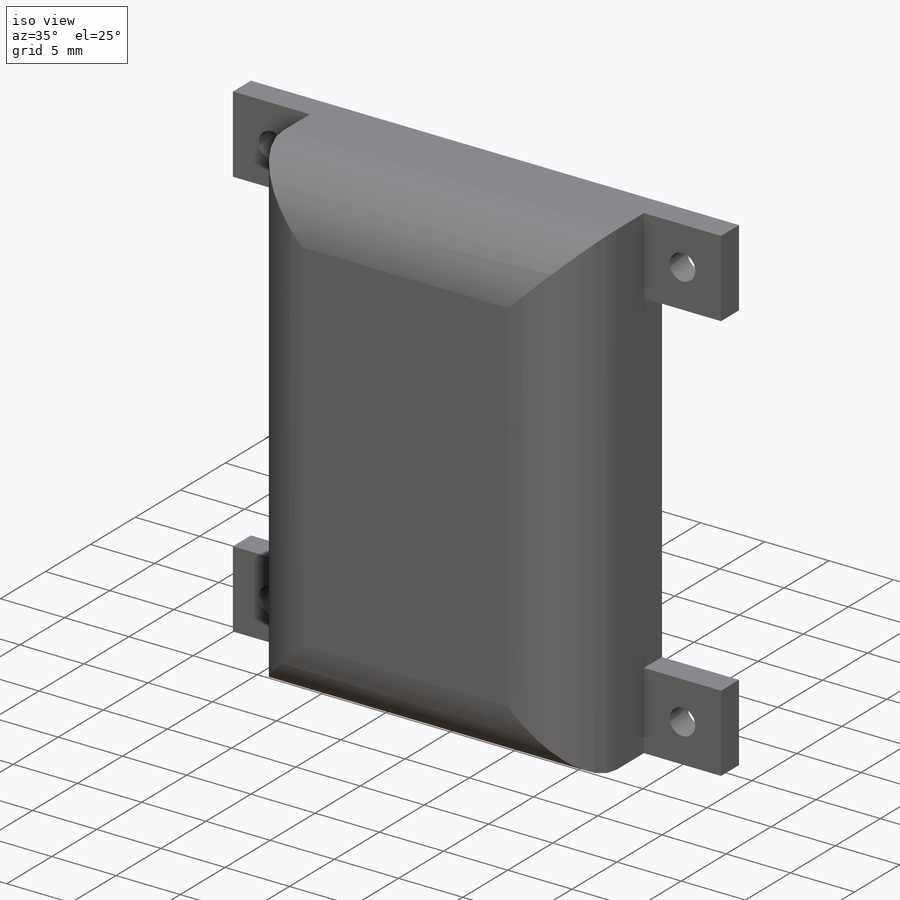
[diagram: iso view]
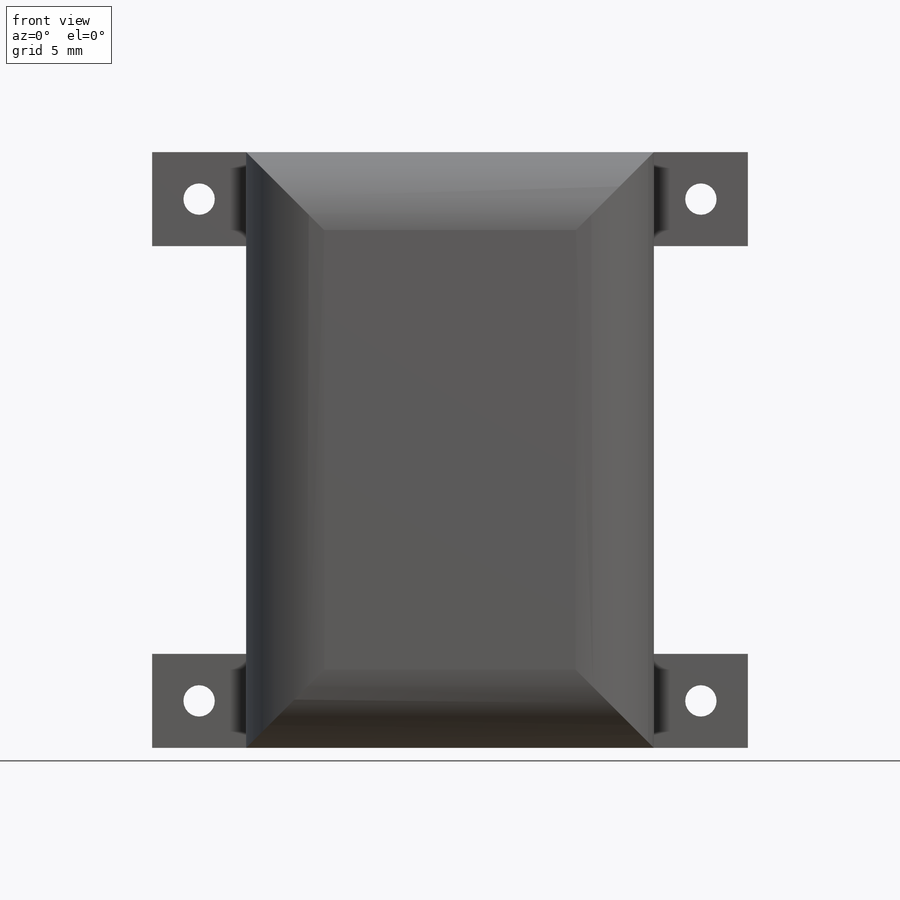
[diagram: front view]
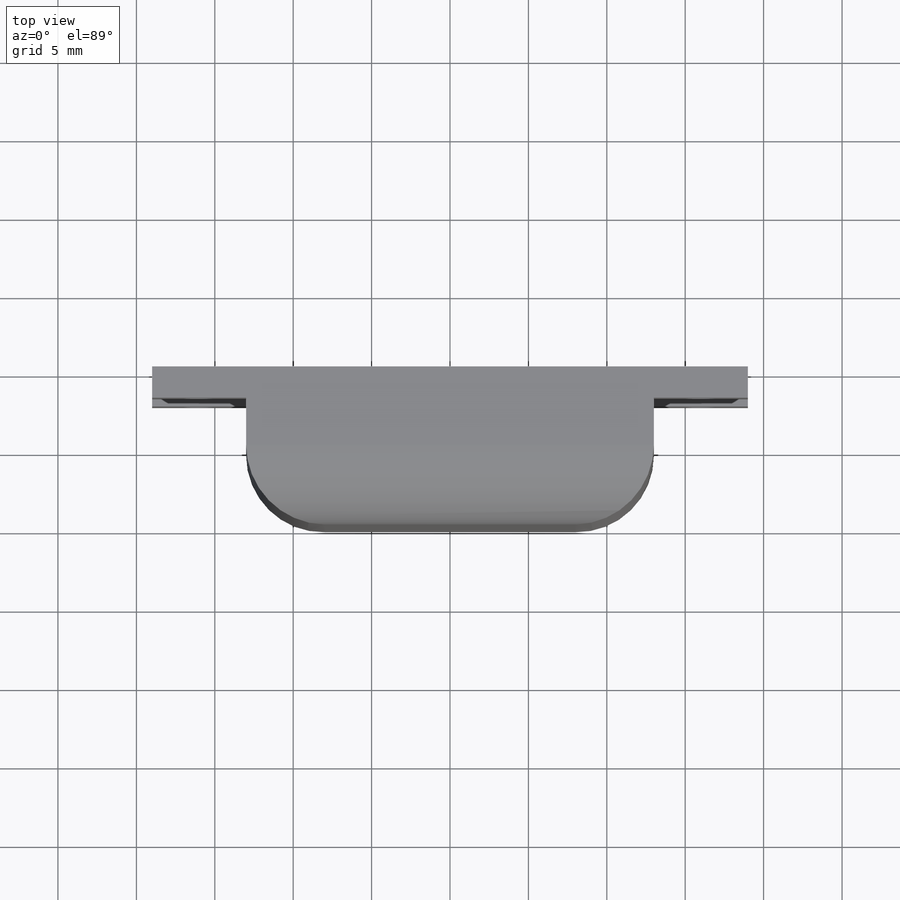
[diagram: top view]
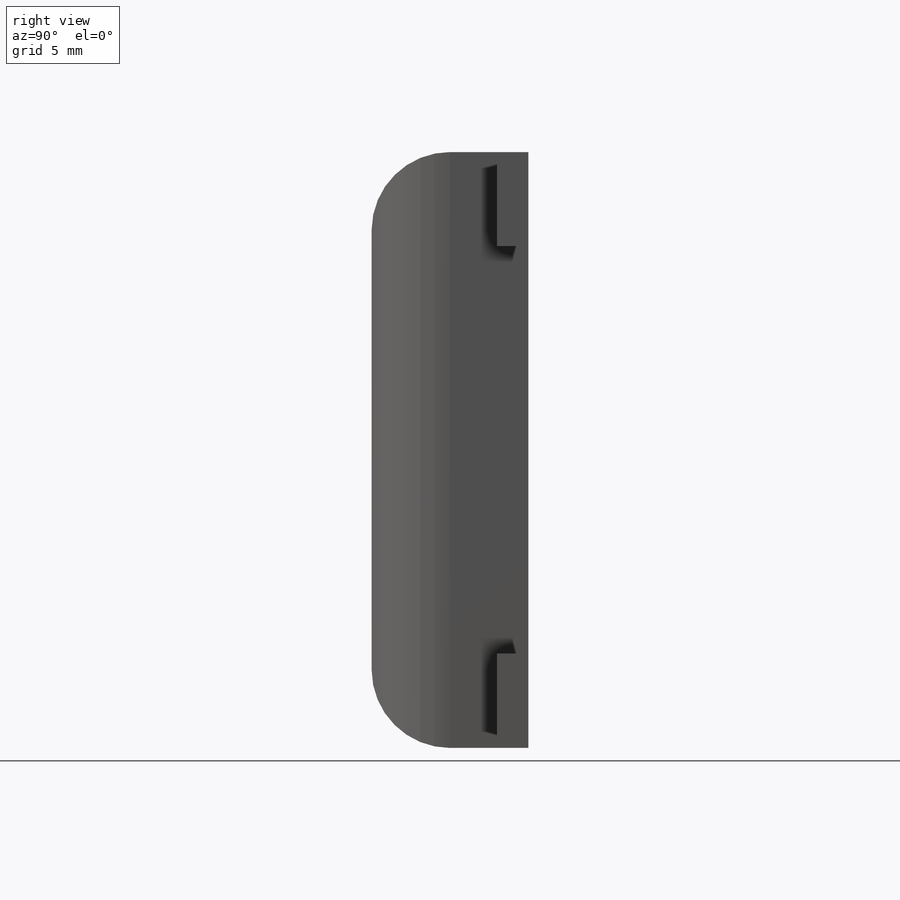
[diagram: right view]
SOLIDWORKS PART (.sldprt)
format: sldprt  version: not decoded by parser v0  size: 281,600 bytes
history: native  units: mm
features: sketch x5, plane x3, extrude x2, cut_extrude x2, material x1, fillet x1 + 2 further entries (+11 scaffold rows collapsed)
feature tree (27):
  scaffold x11  (default folders/planes/origin — collapsed)
  material  "材料 <未指定>"
  "ｻｰﾌｪｽ ﾎﾞﾃﾞｨ"
  "ｿﾘｯﾄﾞ ﾎﾞﾃﾞｨ"
  plane  "正面"
  plane  "平面"
  plane  "右側面"
  sketch  "ｽｹｯﾁ1"  dims[D1=38.0mm D2=26.0mm]
  extrude  "ﾎﾞｽ - 押し出し1"  Depth=10mm
  sketch  "ｽｹｯﾁ2"  dims[D1=22.0mm D2=34.0mm]
  cut_extrude  "ｶｯﾄ - 押し出し1"  Depth=8mm
  sketch  "ｽｹｯﾁ3"  dims[D1=7.0mm D2=2.0mm D3=10.0mm]
  sketch  "ｽｹｯﾁ4"  dims[D1=6.0mm D2=6.0mm D3=6.0mm D4=6.0mm D5=6.0mm D6=6.0mm D7=6.0mm D8=6.0mm D9=0.0mm]
  extrude  "ﾎﾞｽ - 押し出し2"  Depth=2mm
  sketch  "ｽｹｯﾁ5"  dims[c1.D1=~2.344542mm c1.D2=~2.344542mm c1.D3=~2.991303mm c1.D4=2.0mm c1.D5=2.0mm c1.D6=~2.732318mm c1.D7=2.0mm c1.D8=2.0mm c2.D1=3.0mm c2.D2=3.0mm c2.D3=3.0mm c2.D6=3.0mm c2.D9=3.0mm c2.D10=3.0mm c2.D11=3.0mm c2.D12=3.0mm]
  cut_extrude  "ｶｯﾄ - 押し出し4"  Depth=2mm
  fillet  "ﾌｨﾚｯﾄ1"  Radius=5mm
decode coverage: 10 of 10 modeling features carry decoded parameters; 2 rows unclassified (native names shown)
note: ~ marks probable driven/reference dimensions
note: suppression state not decoded; provenance and decode notes live in map.json
